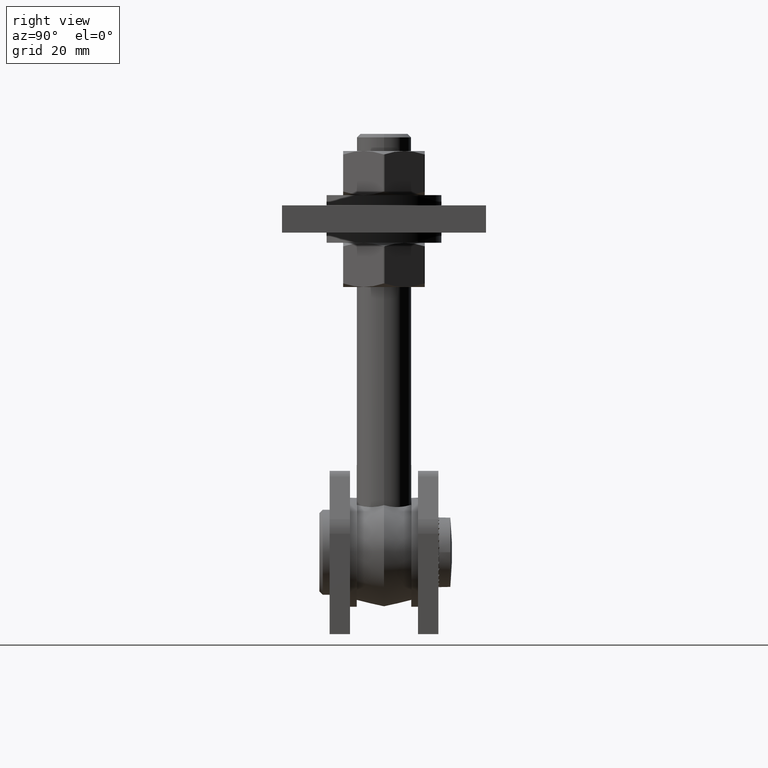
[diagram: clean part render]
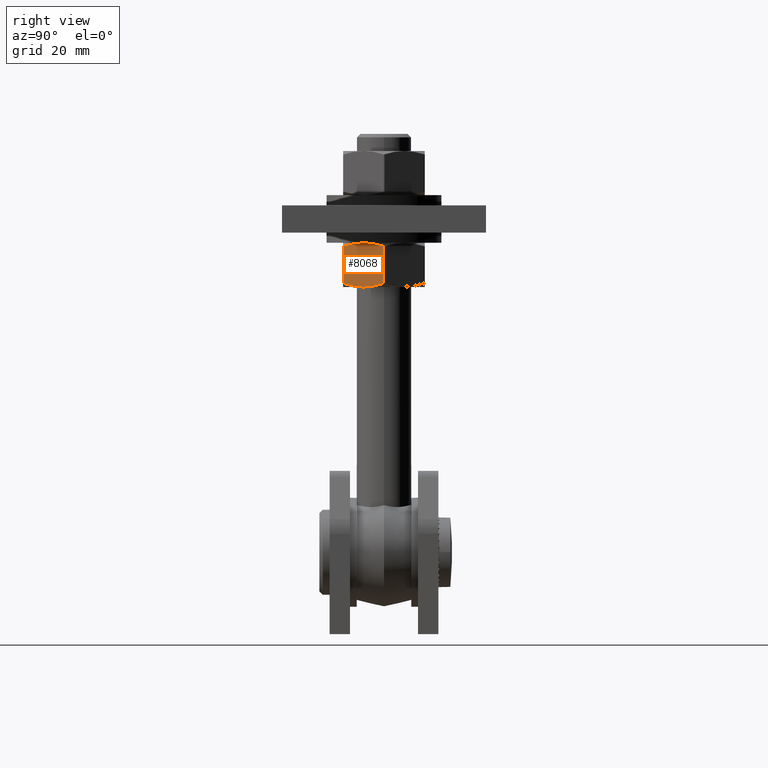
[diagram: same view with one face highlighted and labeled with its STEP entity id]
A machine part, right view. The second image highlights one B-rep face of the part: STEP entity #8068.
In plain terms, the highlighted planar face has unit normal (-0.866, 0.5, -0).
Its self-contained STEP definition (entity closure, byte-faithful):
#124 = ORIENTED_EDGE ( 'NONE', *, *, #1491, .T. ) ;
#498 = CARTESIAN_POINT ( 'NONE',  ( 10.39230484541325339, 6.500000000000005329, -5.999999999999905853 ) ) ;
#572 = CARTESIAN_POINT ( 'NONE',  ( 7.615867869546622870, 5.813954435900758000, -10.80892990621402561 ) ) ;
#640 = CARTESIAN_POINT ( 'NONE',  ( 11.79426250169673374, 6.320028020092764542, -3.571738109256882954 ) ) ;
#714 = CARTESIAN_POINT ( 'NONE',  ( 13.17005630627477863, 5.813219605597447881, -1.188793338989194037 ) ) ;
#811 = B_SPLINE_CURVE_WITH_KNOTS ( 'NONE', 3,
 ( #14049, #5942, #14579, #12545, #17714, #14357 ),
 .UNSPECIFIED., .F., .F.,
 ( 4, 2, 4 ),
 ( 0.0002976420579474609376, 0.003654043546377303692, 0.007010445034807146446 ),
 .UNSPECIFIED. ) ;
#1491 = EDGE_CURVE ( 'NONE', #7172, #6281, #15491, .T. ) ;
#1914 = AXIS2_PLACEMENT_3D ( 'NONE', #16317, #7674, #14592 ) ;
#2296 = CARTESIAN_POINT ( 'NONE',  ( 8.163129901979157665, 6.062901251027051686, -9.861044260987466004 ) ) ;
#2932 = CARTESIAN_POINT ( 'NONE',  ( 10.39230484541325339, 6.500000000000005329, -5.999999999999905853 ) ) ;
#3340 = DIRECTION ( 'NONE',  ( 0.000000000000000000, -1.000000000000000000, -3.563579449361096515E-41 ) ) ;
#3829 = CARTESIAN_POINT ( 'NONE',  ( 9.268740651451423673, 6.406434174578367724, -7.946070269507164774 ) ) ;
#4096 = EDGE_CURVE ( 'NONE', #7424, #7172, #811, .T. ) ;
#4366 = CARTESIAN_POINT ( 'NONE',  ( 10.39230484541320898, -6.500000000000005329, -5.999999999999905853 ) ) ;
#4493 = VECTOR ( 'NONE', #7014, 1000.000000000000000 ) ;
#4954 = EDGE_CURVE ( 'NONE', #14689, #10347, #7861, .T. ) ;
#4993 = ORIENTED_EDGE ( 'NONE', *, *, #4954, .T. ) ;
#5558 = CARTESIAN_POINT ( 'NONE',  ( 10.39230484541325339, 6.500000000000005329, -5.999999999999905853 ) ) ;
#5701 = CARTESIAN_POINT ( 'NONE',  ( 10.95658457648190520, 6.476788126677478274, -5.022638836107869764 ) ) ;
#5942 = CARTESIAN_POINT ( 'NONE',  ( 13.16874182128003135, -5.813954435900753559, -1.191070093785878026 ) ) ;
#5943 = CARTESIAN_POINT ( 'NONE',  ( 9.828025114344749014, -6.476788126677480051, -6.977361163892044083 ) ) ;
#6264 = VERTEX_POINT ( 'NONE', #17389 ) ;
#6281 = VERTEX_POINT ( 'NONE', #15748 ) ;
#7014 = DIRECTION ( 'NONE',  ( -0.000000000000000000, 1.000000000000000000, 3.563579449361096515E-41 ) ) ;
#7172 = VERTEX_POINT ( 'NONE', #8598 ) ;
#7424 = VERTEX_POINT ( 'NONE', #12919 ) ;
#7489 = CARTESIAN_POINT ( 'NONE',  ( 11.51623569666512559, 6.386760395136403368, -4.053294661437687907 ) ) ;
#7674 = DIRECTION ( 'NONE',  ( -0.8660254037844353769, 0.000000000000000000, 0.5000000000000057732 ) ) ;
#7704 = EDGE_CURVE ( 'NONE', #10347, #7424, #12266, .T. ) ;
#7861 = B_SPLINE_CURVE_WITH_KNOTS ( 'NONE', 3,
 ( #498, #14242, #5701, #7489, #640, #12586, #714, #14314 ),
 .UNSPECIFIED., .F., .F.,
 ( 4, 2, 2, 4 ),
 ( 0.007010445034807143844, 0.008682192066603523078, 0.01035393909839990231, 0.01369743316199265905 ),
 .UNSPECIFIED. ) ;
#8068 = ADVANCED_FACE ( 'NONE', ( #12928 ), #16235, .F. ) ;
#8492 = EDGE_CURVE ( 'NONE', #6264, #14689, #20500, .T. ) ;
#8598 = CARTESIAN_POINT ( 'NONE',  ( 10.39230484541320898, -6.500000000000005329, -5.999999999999905853 ) ) ;
#9125 = CARTESIAN_POINT ( 'NONE',  ( 7.072540797572597349, 5.510220883462202401, -11.75000000000034994 ) ) ;
#9247 = ORIENTED_EDGE ( 'NONE', *, *, #4096, .T. ) ;
#9427 = ORIENTED_EDGE ( 'NONE', *, *, #8492, .T. ) ;
#9592 = CARTESIAN_POINT ( 'NONE',  ( 10.11082040635893620, -6.499999999999992006, -6.487545349982195120 ) ) ;
#10347 = VERTEX_POINT ( 'NONE', #19333 ) ;
#11629 = CARTESIAN_POINT ( 'NONE',  ( 7.614553384551888904, -5.813219605597460315, -10.81120666101069716 ) ) ;
#11727 = VECTOR ( 'NONE', #3340, 1000.000000000000000 ) ;
#11889 = CARTESIAN_POINT ( 'NONE',  ( 13.71206889325360656, 6.500000000000005329, -0.2499999999999979461 ) ) ;
#12266 = LINE ( 'NONE', #11889, #11727 ) ;
#12545 = CARTESIAN_POINT ( 'NONE',  ( 11.51586903937522877, -6.406434174578365948, -4.053929730492747296 ) ) ;
#12586 = CARTESIAN_POINT ( 'NONE',  ( 12.62355850601882246, 6.062063013138918599, -2.135355295257143293 ) ) ;
#12919 = CARTESIAN_POINT ( 'NONE',  ( 13.71206889325388545, -5.510220883462202401, -0.2499999999994522160 ) ) ;
#12928 = FACE_OUTER_BOUND ( 'NONE', #22129, .T. ) ;
#13889 = LINE ( 'NONE', #22214, #4493 ) ;
#14025 = ORIENTED_EDGE ( 'NONE', *, *, #7704, .T. ) ;
#14049 = CARTESIAN_POINT ( 'NONE',  ( 13.71206889325388545, -5.510220883462202401, -0.2499999999994522160 ) ) ;
#14242 = CARTESIAN_POINT ( 'NONE',  ( 10.67378928446771624, 6.499999999999990230, -5.512454650017721391 ) ) ;
#14314 = CARTESIAN_POINT ( 'NONE',  ( 13.71206889325360656, 5.510220883462368491, -0.2499999999999966971 ) ) ;
#14357 = CARTESIAN_POINT ( 'NONE',  ( 10.39230484541320898, -6.500000000000005329, -5.999999999999905853 ) ) ;
#14487 = ORIENTED_EDGE ( 'NONE', *, *, #20423, .T. ) ;
#14579 = CARTESIAN_POINT ( 'NONE',  ( 12.62147978884750366, -6.062901251027049021, -2.138955739012444290 ) ) ;
#14592 = DIRECTION ( 'NONE',  ( 0.5000000000000057732, 0.000000000000000000, 0.8660254037844353769 ) ) ;
#14689 = VERTEX_POINT ( 'NONE', #2932 ) ;
#15491 = B_SPLINE_CURVE_WITH_KNOTS ( 'NONE', 3,
 ( #4366, #9592, #5943, #16380, #18072, #19787, #11629, #21795 ),
 .UNSPECIFIED., .F., .F.,
 ( 4, 2, 2, 4 ),
 ( 0.007010445034807146446, 0.008682192066603523078, 0.01035393909839989884, 0.01369743316199264344 ),
 .UNSPECIFIED. ) ;
#15748 = CARTESIAN_POINT ( 'NONE',  ( 7.072540797572914428, -5.510220883462368491, -11.74999999999980638 ) ) ;
#16235 = PLANE ( 'NONE',  #1914 ) ;
#16317 = CARTESIAN_POINT ( 'NONE',  ( 13.85640646055101399, 6.500000000000005329, -3.778976134870717955E-15 ) ) ;
#16380 = CARTESIAN_POINT ( 'NONE',  ( 9.268373994161533957, -6.386760395136403368, -7.946705338562219723 ) ) ;
#17389 = CARTESIAN_POINT ( 'NONE',  ( 7.072540797572597349, 5.510220883462202401, -11.75000000000034994 ) ) ;
#17714 = CARTESIAN_POINT ( 'NONE',  ( 10.95744704231423050, -6.499999999999992895, -5.021145001466486235 ) ) ;
#18072 = CARTESIAN_POINT ( 'NONE',  ( 8.990347189129924033, -6.320028020092768095, -8.428261890743023343 ) ) ;
#19101 = CARTESIAN_POINT ( 'NONE',  ( 9.827162648512421939, 6.499999999999992895, -6.978854998533428500 ) ) ;
#19333 = CARTESIAN_POINT ( 'NONE',  ( 13.71206889325360656, 5.510220883462368491, -0.2499999999999966971 ) ) ;
#19787 = CARTESIAN_POINT ( 'NONE',  ( 8.161051184807838865, -6.062063013138925704, -9.864644704742756787 ) ) ;
#20423 = EDGE_CURVE ( 'NONE', #6281, #6264, #13889, .T. ) ;
#20500 = B_SPLINE_CURVE_WITH_KNOTS ( 'NONE', 3,
 ( #9125, #572, #2296, #3829, #19101, #5558 ),
 .UNSPECIFIED., .F., .F.,
 ( 4, 2, 4 ),
 ( 0.0002976420579474690692, 0.003654043546377306727, 0.007010445034807143844 ),
 .UNSPECIFIED. ) ;
#21795 = CARTESIAN_POINT ( 'NONE',  ( 7.072540797572914428, -5.510220883462368491, -11.74999999999980638 ) ) ;
#22129 = EDGE_LOOP ( 'NONE', ( #4993, #14025, #9247, #124, #14487, #9427 ) ) ;
#22214 = CARTESIAN_POINT ( 'NONE',  ( 7.072540797572910876, 6.500000000000005329, -11.74999999999980815 ) ) ;